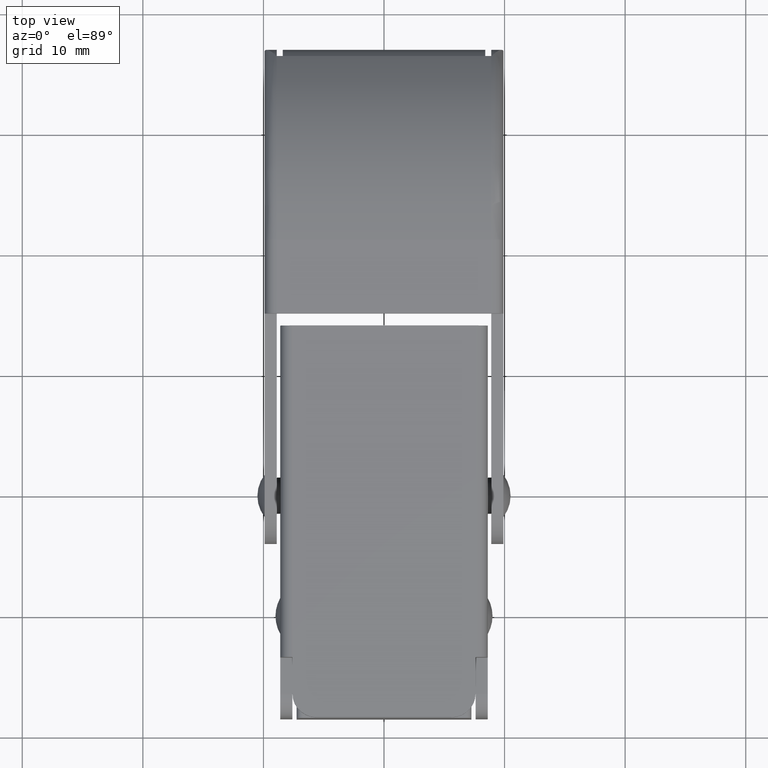
[diagram: clean part render]
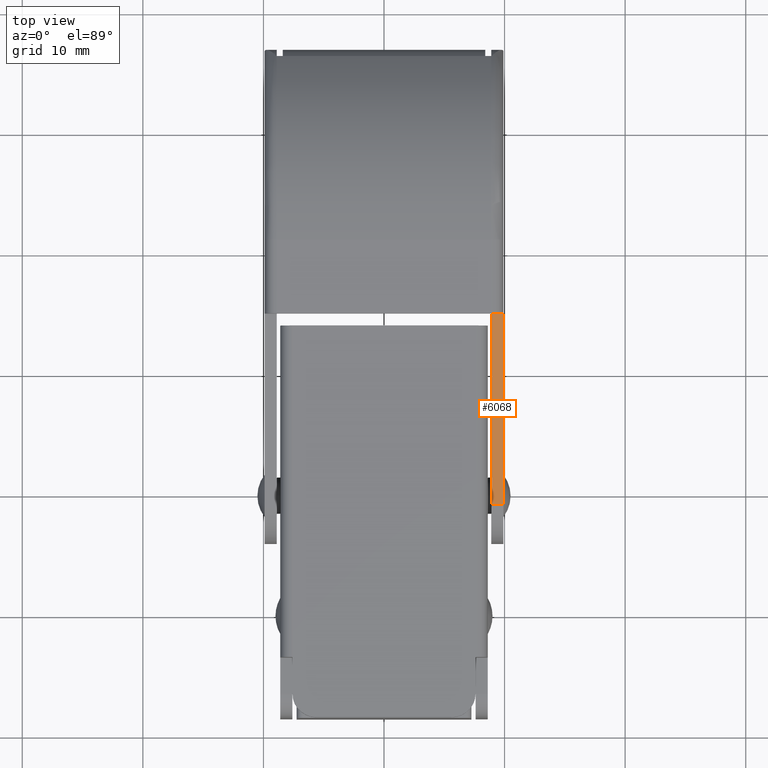
[diagram: same view with one face highlighted and labeled with its STEP entity id]
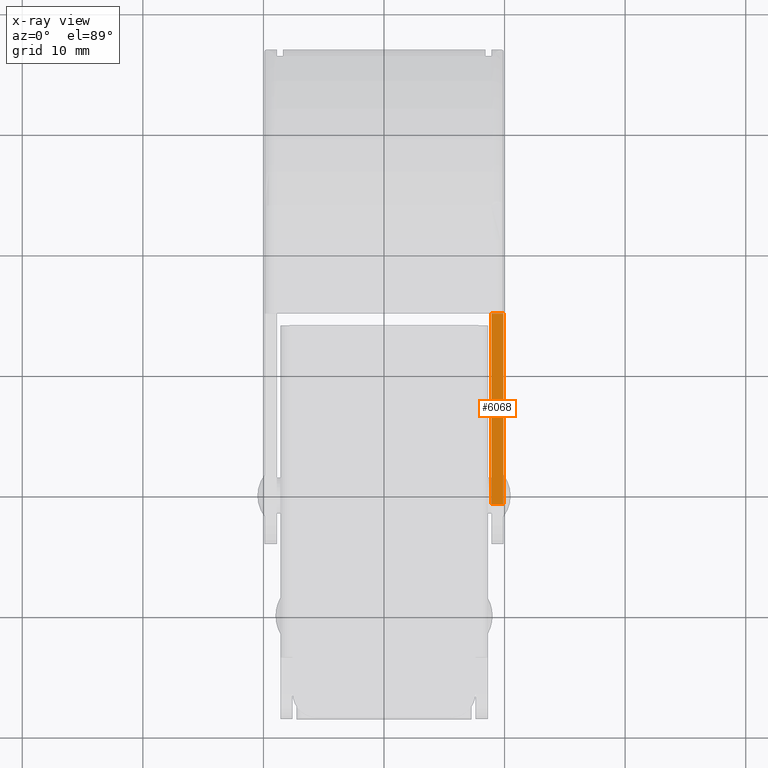
[diagram: x-ray of the same camera — body ghosted, the highlighted face saturated]
A machine part, top view. The second image highlights one B-rep face of the part: STEP entity #6068.
The next image is the same camera in x-ray: the body ghosted, the highlighted face saturated — about 0% of this face is hidden behind the body in this view.
In plain terms, the highlighted planar face has unit normal (0, 0.1914, -0.9815).
Its self-contained STEP definition (entity closure, byte-faithful):
#631 = VERTEX_POINT ( 'NONE', #6249 ) ;
#864 = EDGE_CURVE ( 'NONE', #961, #3571, #6146, .T. ) ;
#961 = VERTEX_POINT ( 'NONE', #3505 ) ;
#1045 = DIRECTION ( 'NONE',  ( 0.0000000000000000000, 0.1913746307644638200, -0.9815170659238510200 ) ) ;
#1127 = DIRECTION ( 'NONE',  ( -1.000000000000000000, -0.0000000000000000000, -0.0000000000000000000 ) ) ;
#1219 = VECTOR ( 'NONE', #6511, 999.9999999999998900 ) ;
#1372 = DIRECTION ( 'NONE',  ( -1.000000000000000000, -0.0000000000000000000, -0.0000000000000000000 ) ) ;
#1582 = EDGE_CURVE ( 'NONE', #3571, #3261, #4235, .T. ) ;
#1979 = ORIENTED_EDGE ( 'NONE', *, *, #1582, .F. ) ;
#2210 = LINE ( 'NONE', #4583, #6728 ) ;
#2223 = ORIENTED_EDGE ( 'NONE', *, *, #3577, .T. ) ;
#2272 = VECTOR ( 'NONE', #1372, 1000.000000000000000 ) ;
#2460 = LINE ( 'NONE', #4465, #2272 ) ;
#2832 = EDGE_LOOP ( 'NONE', ( #2939, #1979, #6609, #2223 ) ) ;
#2939 = ORIENTED_EDGE ( 'NONE', *, *, #4183, .T. ) ;
#3261 = VERTEX_POINT ( 'NONE', #5225 ) ;
#3505 = CARTESIAN_POINT ( 'NONE',  ( 9.899999999999998600, 15.00000000000000000, 7.000000000000001800 ) ) ;
#3571 = VERTEX_POINT ( 'NONE', #4438 ) ;
#3577 = EDGE_CURVE ( 'NONE', #961, #631, #2460, .T. ) ;
#4183 = EDGE_CURVE ( 'NONE', #631, #3261, #2210, .T. ) ;
#4235 = LINE ( 'NONE', #5461, #7294 ) ;
#4438 = CARTESIAN_POINT ( 'NONE',  ( 9.899999999999998600, -0.7654985230578559300, 3.926068263695404500 ) ) ;
#4465 = CARTESIAN_POINT ( 'NONE',  ( 9.899999999999998600, 15.00000000000000000, 7.000000000000001800 ) ) ;
#4583 = CARTESIAN_POINT ( 'NONE',  ( 8.900000000000000400, 15.00000000000000000, 7.000000000000001800 ) ) ;
#4753 = PLANE ( 'NONE',  #5672 ) ;
#5050 = FACE_OUTER_BOUND ( 'NONE', #2832, .T. ) ;
#5225 = CARTESIAN_POINT ( 'NONE',  ( 8.900000000000000400, -0.7654985230578559300, 3.926068263695404500 ) ) ;
#5381 = DIRECTION ( 'NONE',  ( 0.0000000000000000000, 0.9815170659238510200, 0.1913746307644638200 ) ) ;
#5461 = CARTESIAN_POINT ( 'NONE',  ( 9.899999999999998600, -0.7654985230578559300, 3.926068263695404500 ) ) ;
#5672 = AXIS2_PLACEMENT_3D ( 'NONE', #7193, #1045, #5381 ) ;
#5822 = DIRECTION ( 'NONE',  ( 0.0000000000000000000, -0.9815170659238510200, -0.1913746307644638200 ) ) ;
#6068 = ADVANCED_FACE ( 'NONE', ( #5050 ), #4753, .F. ) ;
#6146 = LINE ( 'NONE', #6994, #1219 ) ;
#6249 = CARTESIAN_POINT ( 'NONE',  ( 8.900000000000000400, 15.00000000000000000, 7.000000000000001800 ) ) ;
#6511 = DIRECTION ( 'NONE',  ( 0.0000000000000000000, -0.9815170659238510200, -0.1913746307644638200 ) ) ;
#6609 = ORIENTED_EDGE ( 'NONE', *, *, #864, .F. ) ;
#6728 = VECTOR ( 'NONE', #5822, 999.9999999999998900 ) ;
#6994 = CARTESIAN_POINT ( 'NONE',  ( 9.899999999999998600, 15.00000000000000000, 7.000000000000001800 ) ) ;
#7193 = CARTESIAN_POINT ( 'NONE',  ( 9.899999999999998600, 15.00000000000000000, 7.000000000000001800 ) ) ;
#7294 = VECTOR ( 'NONE', #1127, 1000.000000000000000 ) ;